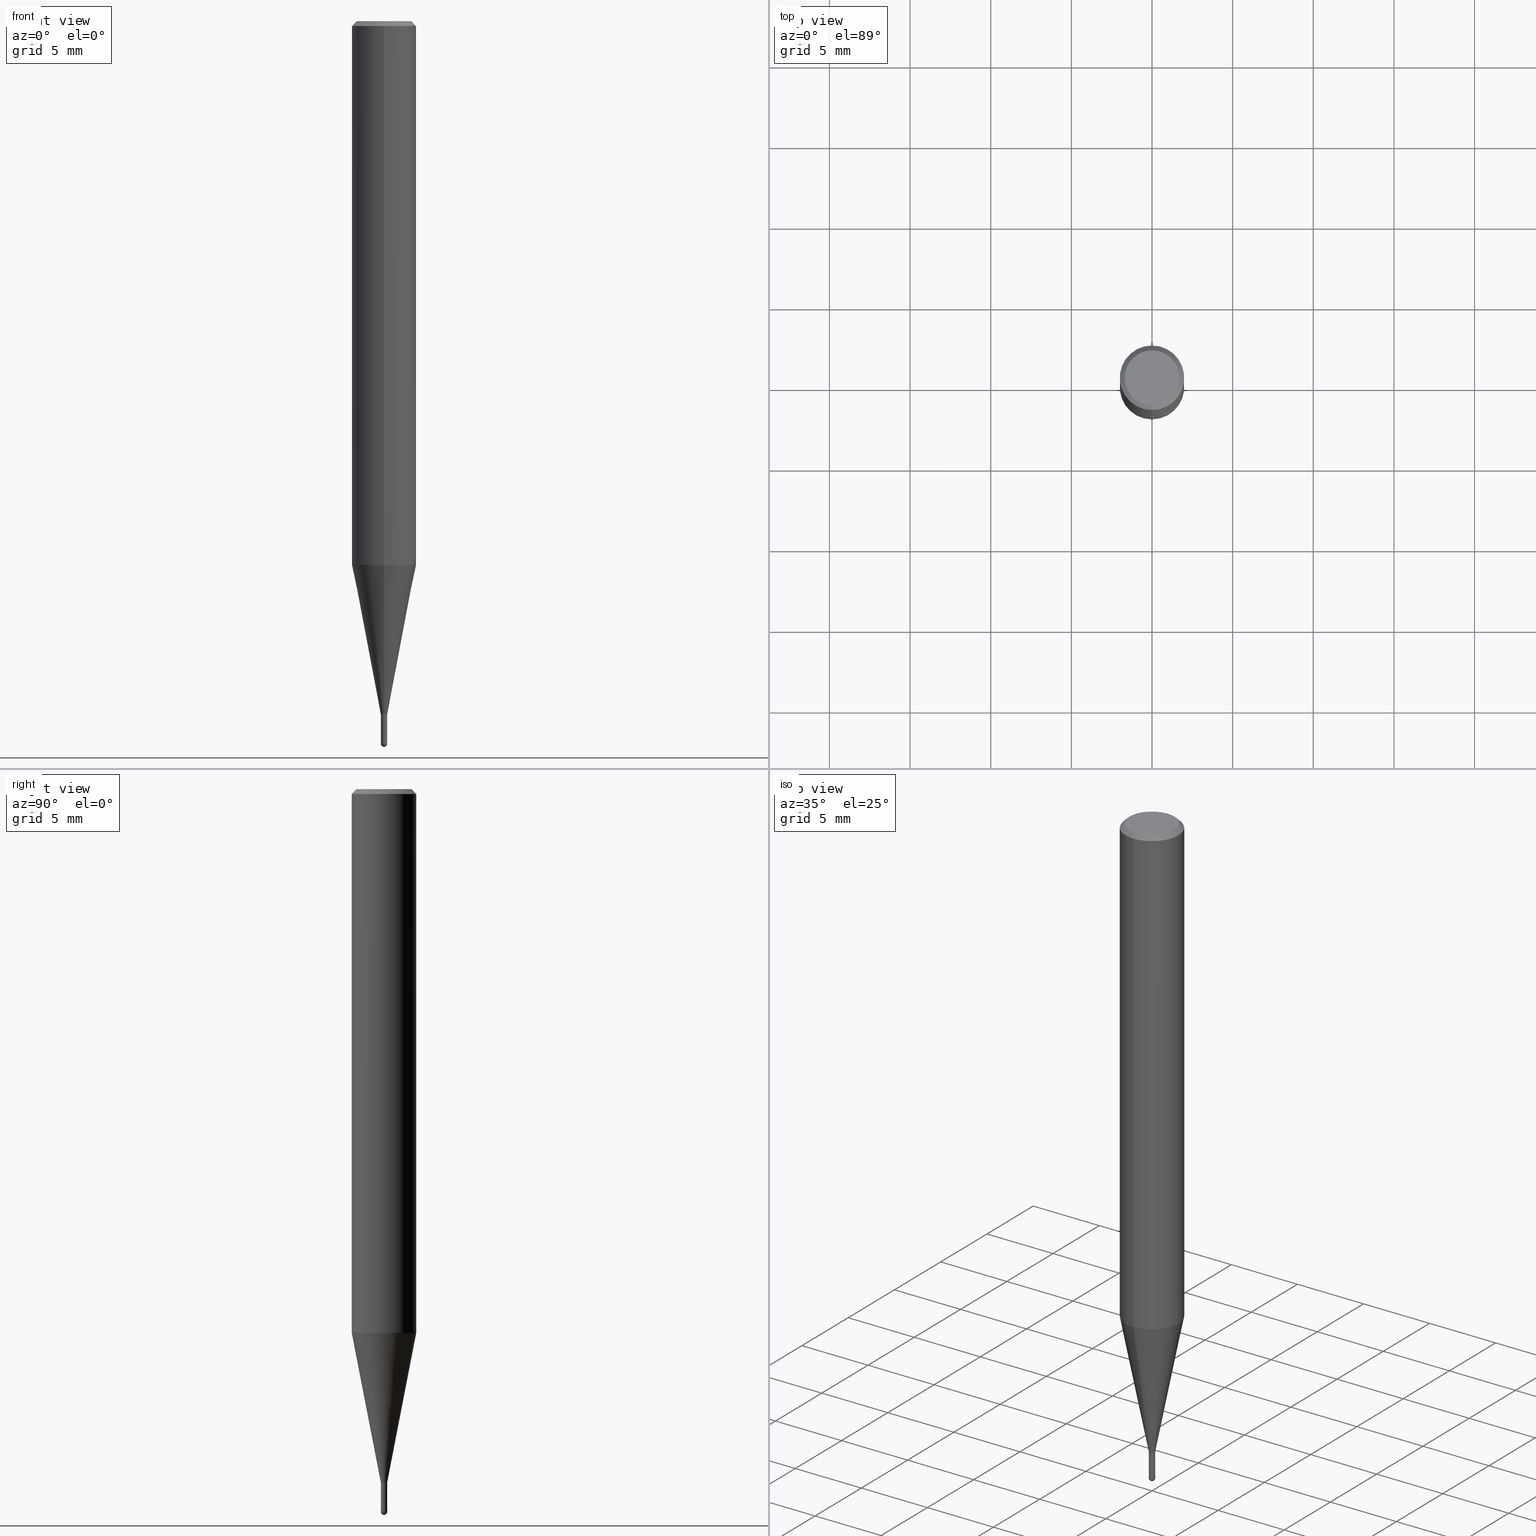
[diagram: canonical four-view strip — front | top / right | iso, engineering-drawing reading convention]
A machine part, canonical four-view strip (front | top / right | iso — engineering-drawing reading convention). The complete STEP part file that produces these views, byte-faithful:
ISO-10303-21;
HEADER;
FILE_DESCRIPTION(('no description'),'unknown implementation level');
FILE_NAME('CSELB2004-020-Huellk.stp','  ',('CIMSOURCE GmbH'),('CADClick - KiM GmbH - www.kimweb.de'),'unknown preprocess','ACIS','unknown authorization');
FILE_SCHEMA(('automotive_design'));
ENDSEC;
DATA;
#1=MECHANICAL_DESIGN_GEOMETRIC_PRESENTATION_REPRESENTATION(' ',(#14,#15,#16,#17,#18,#19,#20,#21,#22,#23,#24,#25,#26,#27,#28,#29,#30,#31,#32,#33,#34,#35,#36,#37,#38,#39,#40,#41,#42,#43,#44,#45,#46,#47,#48,#49,#50,#51,#52,#53,#54,#55,#56,#57,#58,#59,#60,#61,#62,#63,#64,#65,#66,#67,#68,#69,#70,#71,#72,#73,#74),#10);
#2=PRODUCT_DEFINITION_CONTEXT('',#75,'design');
#3=APPLICATION_PROTOCOL_DEFINITION('INTERNATIONAL STANDARD','automotive_design',1994,#75);
#4=PRODUCT_CATEGORY_RELATIONSHIP('NONE','NONE',#76,#77);
#5=SHAPE_DEFINITION_REPRESENTATION(#78,#79);
#6=PRODUCT_DEFINITION_CONTEXT('',#80,'design');
#7=APPLICATION_PROTOCOL_DEFINITION('INTERNATIONAL STANDARD','automotive_design',1994,#80);
#8=PRODUCT_CATEGORY_RELATIONSHIP('NONE','NONE',#81,#82);
#9=SHAPE_DEFINITION_REPRESENTATION(#83,#84);
#10= (GEOMETRIC_REPRESENTATION_CONTEXT(3)GLOBAL_UNCERTAINTY_ASSIGNED_CONTEXT((#87))GLOBAL_UNIT_ASSIGNED_CONTEXT((#89,#90,#91))REPRESENTATION_CONTEXT('NONE','WORKSPACE'));
#14=STYLED_ITEM('',(#93),#94);
#15=STYLED_ITEM('',(#95),#96);
#16=STYLED_ITEM('',(#97),#98);
#17=STYLED_ITEM('',(#99),#100);
#18=STYLED_ITEM('',(#101),#102);
#19=STYLED_ITEM('',(#103),#104);
#20=STYLED_ITEM('',(#105),#106);
#21=STYLED_ITEM('',(#107),#108);
#22=STYLED_ITEM('',(#109),#110);
#23=STYLED_ITEM('',(#111),#112);
#24=STYLED_ITEM('',(#113),#114);
#25=STYLED_ITEM('',(#115),#116);
#26=STYLED_ITEM('',(#117),#118);
#27=STYLED_ITEM('',(#119),#120);
#28=STYLED_ITEM('',(#121),#122);
#29=STYLED_ITEM('',(#123),#124);
#30=STYLED_ITEM('',(#125),#126);
#31=STYLED_ITEM('',(#127),#128);
#32=STYLED_ITEM('',(#129),#130);
#33=STYLED_ITEM('',(#131),#132);
#34=STYLED_ITEM('',(#133),#134);
#35=STYLED_ITEM('',(#135),#136);
#36=STYLED_ITEM('',(#137),#138);
#37=STYLED_ITEM('',(#139),#140);
#38=STYLED_ITEM('',(#141),#142);
#39=STYLED_ITEM('',(#143),#144);
#40=STYLED_ITEM('',(#145),#146);
#41=STYLED_ITEM('',(#147),#148);
#42=STYLED_ITEM('',(#149),#150);
#43=STYLED_ITEM('',(#151),#152);
#44=STYLED_ITEM('',(#153),#154);
#45=STYLED_ITEM('',(#155),#156);
#46=STYLED_ITEM('',(#157),#158);
#47=STYLED_ITEM('',(#159),#160);
#48=STYLED_ITEM('',(#161),#162);
#49=STYLED_ITEM('',(#163),#164);
#50=STYLED_ITEM('',(#165),#166);
#51=STYLED_ITEM('',(#167),#168);
#52=STYLED_ITEM('',(#169),#170);
#53=STYLED_ITEM('',(#171),#172);
#54=STYLED_ITEM('',(#173),#174);
#55=STYLED_ITEM('',(#175),#176);
#56=STYLED_ITEM('',(#177),#178);
#57=STYLED_ITEM('',(#179),#180);
#58=STYLED_ITEM('',(#181),#182);
#59=STYLED_ITEM('',(#183),#184);
#60=STYLED_ITEM('',(#185),#186);
#61=STYLED_ITEM('',(#187),#188);
#62=STYLED_ITEM('',(#189),#190);
#63=STYLED_ITEM('',(#191),#192);
#64=STYLED_ITEM('',(#193),#194);
#65=STYLED_ITEM('',(#195),#196);
#66=STYLED_ITEM('',(#197),#198);
#67=STYLED_ITEM('',(#199),#200);
#68=STYLED_ITEM('',(#201),#202);
#69=STYLED_ITEM('',(#203),#204);
#70=STYLED_ITEM('',(#205),#206);
#71=STYLED_ITEM('',(#207),#208);
#72=STYLED_ITEM('',(#209),#210);
#73=STYLED_ITEM('',(#211),#212);
#74=STYLED_ITEM('',(#213),#214);
#75=APPLICATION_CONTEXT(' ');
#76=PRODUCT_CATEGORY('part','NONE');
#77=PRODUCT_RELATED_PRODUCT_CATEGORY('detail',' ',(#215));
#78=PRODUCT_DEFINITION_SHAPE('NONE','NONE',#216);
#79=ADVANCED_BREP_SHAPE_REPRESENTATION('1',(#136,#217),#10);
#80=APPLICATION_CONTEXT(' ');
#81=PRODUCT_CATEGORY('part','NONE');
#82=PRODUCT_RELATED_PRODUCT_CATEGORY('detail',' ',(#218));
#83=PRODUCT_DEFINITION_SHAPE('NONE','NONE',#219);
#84=ADVANCED_BREP_SHAPE_REPRESENTATION('2',(#164,#220),#10);
#87=UNCERTAINTY_MEASURE_WITH_UNIT(LENGTH_MEASURE(1.0E-006),#89,'','');
#89= (CONVERSION_BASED_UNIT('MILLIMETRE',#223)LENGTH_UNIT()NAMED_UNIT(#226));
#90= (NAMED_UNIT(#228)PLANE_ANGLE_UNIT()SI_UNIT($,.RADIAN.));
#91= (NAMED_UNIT(#228)SOLID_ANGLE_UNIT()SI_UNIT($,.STERADIAN.));
#93=PRESENTATION_STYLE_ASSIGNMENT((#234));
#94=EDGE_CURVE('',#134,#176,#235,.T.);
#95=PRESENTATION_STYLE_ASSIGNMENT((#236));
#96=EDGE_CURVE('',#138,#102,#237,.T.);
#97=PRESENTATION_STYLE_ASSIGNMENT((#238));
#98=VERTEX_POINT('',#239);
#99=PRESENTATION_STYLE_ASSIGNMENT((#240));
#100=ADVANCED_FACE('',(#241),#242,.T.);
#101=PRESENTATION_STYLE_ASSIGNMENT((#243));
#102=VERTEX_POINT('',#244);
#103=PRESENTATION_STYLE_ASSIGNMENT((#245));
#104=EDGE_CURVE('',#118,#160,#246,.T.);
#105=PRESENTATION_STYLE_ASSIGNMENT((#247));
#106=ADVANCED_FACE('',(#248),#249,.T.);
#107=PRESENTATION_STYLE_ASSIGNMENT((#250));
#108=VERTEX_POINT('',#251);
#109=PRESENTATION_STYLE_ASSIGNMENT((#252));
#110=VERTEX_POINT('',#253);
#111=PRESENTATION_STYLE_ASSIGNMENT((#254));
#112=VERTEX_POINT('',#255);
#113=PRESENTATION_STYLE_ASSIGNMENT((#256));
#114=EDGE_CURVE('',#194,#108,#257,.T.);
#115=PRESENTATION_STYLE_ASSIGNMENT((#258));
#116=EDGE_CURVE('',#176,#146,#259,.T.);
#117=PRESENTATION_STYLE_ASSIGNMENT((#260));
#118=VERTEX_POINT('',#261);
#119=PRESENTATION_STYLE_ASSIGNMENT((#262));
#120=EDGE_CURVE('',#196,#194,#263,.T.);
#121=PRESENTATION_STYLE_ASSIGNMENT((#264));
#122=EDGE_CURVE('',#108,#194,#265,.T.);
#123=PRESENTATION_STYLE_ASSIGNMENT((#266));
#124=ADVANCED_FACE('',(#267),#268,.T.);
#125=PRESENTATION_STYLE_ASSIGNMENT((#269));
#126=ADVANCED_FACE('',(#270),#271,.T.);
#127=PRESENTATION_STYLE_ASSIGNMENT((#272));
#128=EDGE_CURVE('',#190,#110,#273,.T.);
#129=PRESENTATION_STYLE_ASSIGNMENT((#274));
#130=EDGE_CURVE('',#112,#196,#275,.T.);
#131=PRESENTATION_STYLE_ASSIGNMENT((#276));
#132=EDGE_CURVE('',#204,#202,#277,.T.);
#133=PRESENTATION_STYLE_ASSIGNMENT((#278));
#134=VERTEX_POINT('',#279);
#135=PRESENTATION_STYLE_ASSIGNMENT((#280));
#136=MANIFOLD_SOLID_BREP('1',#281);
#137=PRESENTATION_STYLE_ASSIGNMENT((#282));
#138=VERTEX_POINT('',#283);
#139=PRESENTATION_STYLE_ASSIGNMENT((#284));
#140=EDGE_CURVE('',#118,#160,#285,.T.);
#141=PRESENTATION_STYLE_ASSIGNMENT((#286));
#142=EDGE_CURVE('',#196,#112,#287,.T.);
#143=PRESENTATION_STYLE_ASSIGNMENT((#288));
#144=ADVANCED_FACE('',(#289),#290,.T.);
#145=PRESENTATION_STYLE_ASSIGNMENT((#291));
#146=VERTEX_POINT('',#292);
#147=PRESENTATION_STYLE_ASSIGNMENT((#293));
#148=ADVANCED_FACE('',(#294),#295,.T.);
#149=PRESENTATION_STYLE_ASSIGNMENT((#296));
#150=EDGE_CURVE('',#108,#112,#297,.T.);
#151=PRESENTATION_STYLE_ASSIGNMENT((#298));
#152=EDGE_CURVE('',#102,#138,#299,.T.);
#153=PRESENTATION_STYLE_ASSIGNMENT((#300));
#154=EDGE_CURVE('',#134,#98,#301,.T.);
#155=PRESENTATION_STYLE_ASSIGNMENT((#302));
#156=ADVANCED_FACE('',(#303),#304,.T.);
#157=PRESENTATION_STYLE_ASSIGNMENT((#305));
#158=EDGE_CURVE('',#98,#134,#306,.T.);
#159=PRESENTATION_STYLE_ASSIGNMENT((#307));
#160=VERTEX_POINT('',#308);
#161=PRESENTATION_STYLE_ASSIGNMENT((#309));
#162=ADVANCED_FACE('',(#310),#311,.T.);
#163=PRESENTATION_STYLE_ASSIGNMENT((#312));
#164=MANIFOLD_SOLID_BREP('2',#313);
#165=PRESENTATION_STYLE_ASSIGNMENT((#314));
#166=EDGE_CURVE('',#194,#110,#315,.T.);
#167=PRESENTATION_STYLE_ASSIGNMENT((#316));
#168=EDGE_CURVE('',#98,#202,#317,.T.);
#169=PRESENTATION_STYLE_ASSIGNMENT((#318));
#170=EDGE_CURVE('',#190,#108,#319,.T.);
#171=PRESENTATION_STYLE_ASSIGNMENT((#320));
#172=ADVANCED_FACE('',(#321),#322,.T.);
#173=PRESENTATION_STYLE_ASSIGNMENT((#323));
#174=ADVANCED_FACE('',(#324),#325,.T.);
#175=PRESENTATION_STYLE_ASSIGNMENT((#326));
#176=VERTEX_POINT('',#327);
#177=PRESENTATION_STYLE_ASSIGNMENT((#328));
#178=EDGE_CURVE('',#118,#138,#329,.T.);
#179=PRESENTATION_STYLE_ASSIGNMENT((#330));
#180=ADVANCED_FACE('',(#331),#332,.T.);
#181=PRESENTATION_STYLE_ASSIGNMENT((#333));
#182=EDGE_CURVE('',#160,#118,#334,.T.);
#183=PRESENTATION_STYLE_ASSIGNMENT((#335));
#184=EDGE_CURVE('',#146,#98,#336,.T.);
#185=PRESENTATION_STYLE_ASSIGNMENT((#337));
#186=EDGE_CURVE('',#110,#190,#338,.T.);
#187=PRESENTATION_STYLE_ASSIGNMENT((#339));
#188=ADVANCED_FACE('',(#340),#341,.T.);
#189=PRESENTATION_STYLE_ASSIGNMENT((#342));
#190=VERTEX_POINT('',#343);
#191=PRESENTATION_STYLE_ASSIGNMENT((#344));
#192=ADVANCED_FACE('',(#345),#346,.T.);
#193=PRESENTATION_STYLE_ASSIGNMENT((#347));
#194=VERTEX_POINT('',#348);
#195=PRESENTATION_STYLE_ASSIGNMENT((#349));
#196=VERTEX_POINT('',#350);
#197=PRESENTATION_STYLE_ASSIGNMENT((#351));
#198=ADVANCED_FACE('',(#352),#353,.T.);
#199=PRESENTATION_STYLE_ASSIGNMENT((#354));
#200=EDGE_CURVE('',#102,#160,#355,.T.);
#201=PRESENTATION_STYLE_ASSIGNMENT((#356));
#202=VERTEX_POINT('',#357);
#203=PRESENTATION_STYLE_ASSIGNMENT((#358));
#204=VERTEX_POINT('',#359);
#205=PRESENTATION_STYLE_ASSIGNMENT((#360));
#206=EDGE_CURVE('',#202,#204,#361,.T.);
#207=PRESENTATION_STYLE_ASSIGNMENT((#362));
#208=ADVANCED_FACE('',(#363),#364,.T.);
#209=PRESENTATION_STYLE_ASSIGNMENT((#365));
#210=EDGE_CURVE('',#204,#134,#366,.T.);
#211=PRESENTATION_STYLE_ASSIGNMENT((#367));
#212=ADVANCED_FACE('',(#368,#369),#370,.T.);
#213=PRESENTATION_STYLE_ASSIGNMENT((#371));
#214=EDGE_CURVE('',#146,#176,#372,.T.);
#215=PRODUCT('1','1','PART-1-DESC',(#373));
#216=PRODUCT_DEFINITION('NONE','NONE',#374,#2);
#217=AXIS2_PLACEMENT_3D('',#375,#376,#377);
#218=PRODUCT('2','2','PART-2-DESC',(#378));
#219=PRODUCT_DEFINITION('NONE','NONE',#379,#6);
#220=AXIS2_PLACEMENT_3D('',#380,#381,#382);
#223=LENGTH_MEASURE_WITH_UNIT(LENGTH_MEASURE(1.0),#383);
#226=DIMENSIONAL_EXPONENTS(1.0,0.0,0.0,0.0,0.0,0.0,0.0);
#228=DIMENSIONAL_EXPONENTS(0.0,0.0,0.0,0.0,0.0,0.0,0.0);
#234=CURVE_STYLE('',#384,POSITIVE_LENGTH_MEASURE(1.0E-006),#385);
#235=LINE('',#386,#387);
#236=CURVE_STYLE('',#388,POSITIVE_LENGTH_MEASURE(1.0E-006),#389);
#237=CIRCLE('',#390,0.1999);
#238=POINT_STYLE(' ',#391,POSITIVE_LENGTH_MEASURE(1.0E-006),#392);
#239=CARTESIAN_POINT('',(0.0,2.0,-0.299999999999997));
#240=SURFACE_STYLE_USAGE(.BOTH.,#393);
#241=FACE_OUTER_BOUND('',#394,.T.);
#242=CYLINDRICAL_SURFACE('',#395,2.0);
#243=POINT_STYLE(' ',#396,POSITIVE_LENGTH_MEASURE(1.0E-006),#397);
#244=CARTESIAN_POINT('',(0.0,0.1999,-44.68));
#245=CURVE_STYLE('',#398,POSITIVE_LENGTH_MEASURE(1.0E-006),#399);
#246=CIRCLE('',#400,0.2);
#247=SURFACE_STYLE_USAGE(.BOTH.,#401);
#248=FACE_OUTER_BOUND('',#402,.T.);
#249=CONICAL_SURFACE('',#403,0.19995,0.000833333140432319);
#250=POINT_STYLE(' ',#404,POSITIVE_LENGTH_MEASURE(1.0E-006),#405);
#251=CARTESIAN_POINT('',(0.0,0.19495,-43.0));
#252=POINT_STYLE(' ',#406,POSITIVE_LENGTH_MEASURE(1.0E-006),#407);
#253=CARTESIAN_POINT('',(2.44915147732706E-016,-1.99995,-33.714));
#254=POINT_STYLE(' ',#408,POSITIVE_LENGTH_MEASURE(1.0E-006),#409);
#255=CARTESIAN_POINT('',(0.0,0.19495,-44.68));
#256=CURVE_STYLE('',#410,POSITIVE_LENGTH_MEASURE(1.0E-006),#411);
#257=CIRCLE('',#412,0.19495);
#258=CURVE_STYLE('',#413,POSITIVE_LENGTH_MEASURE(1.0E-006),#414);
#259=CIRCLE('',#415,1.7);
#260=POINT_STYLE(' ',#416,POSITIVE_LENGTH_MEASURE(1.0E-006),#417);
#261=CARTESIAN_POINT('',(2.44921270764475E-017,-0.2,-44.8));
#262=CURVE_STYLE('',#418,POSITIVE_LENGTH_MEASURE(1.0E-006),#419);
#263=LINE('',#420,#421);
#264=CURVE_STYLE('',#422,POSITIVE_LENGTH_MEASURE(1.0E-006),#423);
#265=CIRCLE('',#424,0.19495);
#266=SURFACE_STYLE_USAGE(.BOTH.,#425);
#267=FACE_OUTER_BOUND('',#426,.T.);
#268=CONICAL_SURFACE('',#427,0.19995,0.000833333140432319);
#269=SURFACE_STYLE_USAGE(.BOTH.,#428);
#270=FACE_OUTER_BOUND('',#429,.T.);
#271=CYLINDRICAL_SURFACE('',#430,0.19495);
#272=CURVE_STYLE('',#431,POSITIVE_LENGTH_MEASURE(1.0E-006),#432);
#273=CIRCLE('',#433,1.99995);
#274=CURVE_STYLE('',#434,POSITIVE_LENGTH_MEASURE(1.0E-006),#435);
#275=CIRCLE('',#436,0.19495);
#276=CURVE_STYLE('',#437,POSITIVE_LENGTH_MEASURE(1.0E-006),#438);
#277=CIRCLE('',#439,2.0);
#278=POINT_STYLE(' ',#440,POSITIVE_LENGTH_MEASURE(1.0E-006),#441);
#279=CARTESIAN_POINT('',(2.44921270764475E-016,-2.0,-0.299999999999997));
#280=SURFACE_STYLE_USAGE(.BOTH.,#442);
#281=CLOSED_SHELL('',(#162,#174,#180,#192,#212,#172,#188,#100,#156,#126,#144));
#282=POINT_STYLE(' ',#443,POSITIVE_LENGTH_MEASURE(1.0E-006),#444);
#283=CARTESIAN_POINT('',(2.44798810129093E-017,-0.1999,-44.68));
#284=CURVE_STYLE('',#445,POSITIVE_LENGTH_MEASURE(1.0E-006),#446);
#285=CIRCLE('',#447,0.2);
#286=CURVE_STYLE('',#448,POSITIVE_LENGTH_MEASURE(1.0E-006),#449);
#287=CIRCLE('',#450,0.19495);
#288=SURFACE_STYLE_USAGE(.BOTH.,#451);
#289=FACE_OUTER_BOUND('',#452,.T.);
#290=PLANE('',#453);
#291=POINT_STYLE(' ',#454,POSITIVE_LENGTH_MEASURE(1.0E-006),#455);
#292=CARTESIAN_POINT('',(0.0,1.7,0.0));
#293=SURFACE_STYLE_USAGE(.BOTH.,#456);
#294=FACE_OUTER_BOUND('',#457,.T.);
#295=SPHERICAL_SURFACE('',#458,0.2);
#296=CURVE_STYLE('',#459,POSITIVE_LENGTH_MEASURE(1.0E-006),#460);
#297=LINE('',#461,#462);
#298=CURVE_STYLE('',#463,POSITIVE_LENGTH_MEASURE(1.0E-006),#464);
#299=CIRCLE('',#465,0.1999);
#300=CURVE_STYLE('',#466,POSITIVE_LENGTH_MEASURE(1.0E-006),#467);
#301=CIRCLE('',#468,2.0);
#302=SURFACE_STYLE_USAGE(.BOTH.,#469);
#303=FACE_OUTER_BOUND('',#470,.T.);
#304=CONICAL_SURFACE('',#471,1.09745,0.191984604054908);
#305=CURVE_STYLE('',#472,POSITIVE_LENGTH_MEASURE(1.0E-006),#473);
#306=CIRCLE('',#474,2.0);
#307=POINT_STYLE(' ',#475,POSITIVE_LENGTH_MEASURE(1.0E-006),#476);
#308=CARTESIAN_POINT('',(0.0,0.2,-44.8));
#309=SURFACE_STYLE_USAGE(.BOTH.,#477);
#310=FACE_OUTER_BOUND('',#478,.T.);
#311=CYLINDRICAL_SURFACE('',#479,0.19495);
#312=SURFACE_STYLE_USAGE(.BOTH.,#480);
#313=CLOSED_SHELL('',(#198,#124,#208,#106,#148));
#314=CURVE_STYLE('',#481,POSITIVE_LENGTH_MEASURE(1.0E-006),#482);
#315=LINE('',#483,#484);
#316=CURVE_STYLE('',#485,POSITIVE_LENGTH_MEASURE(1.0E-006),#486);
#317=LINE('',#487,#488);
#318=CURVE_STYLE('',#489,POSITIVE_LENGTH_MEASURE(1.0E-006),#490);
#319=LINE('',#491,#492);
#320=SURFACE_STYLE_USAGE(.BOTH.,#493);
#321=FACE_OUTER_BOUND('',#494,.T.);
#322=PLANE('',#495);
#323=SURFACE_STYLE_USAGE(.BOTH.,#496);
#324=FACE_OUTER_BOUND('',#497,.T.);
#325=CONICAL_SURFACE('',#498,1.09745,0.191984604054908);
#326=POINT_STYLE(' ',#499,POSITIVE_LENGTH_MEASURE(1.0E-006),#500);
#327=CARTESIAN_POINT('',(2.08183080149804E-016,-1.7,0.0));
#328=CURVE_STYLE('',#501,POSITIVE_LENGTH_MEASURE(1.0E-006),#502);
#329=LINE('',#503,#504);
#330=SURFACE_STYLE_USAGE(.BOTH.,#505);
#331=FACE_OUTER_BOUND('',#506,.T.);
#332=CYLINDRICAL_SURFACE('',#507,2.0);
#333=CURVE_STYLE('',#508,POSITIVE_LENGTH_MEASURE(1.0E-006),#509);
#334=CIRCLE('',#510,0.2);
#335=CURVE_STYLE('',#511,POSITIVE_LENGTH_MEASURE(1.0E-006),#512);
#336=LINE('',#513,#514);
#337=CURVE_STYLE('',#515,POSITIVE_LENGTH_MEASURE(1.0E-006),#516);
#338=CIRCLE('',#517,1.99995);
#339=SURFACE_STYLE_USAGE(.BOTH.,#518);
#340=FACE_OUTER_BOUND('',#519,.T.);
#341=CONICAL_SURFACE('',#520,1.85,0.785398163397453);
#342=POINT_STYLE(' ',#521,POSITIVE_LENGTH_MEASURE(1.0E-006),#522);
#343=CARTESIAN_POINT('',(0.0,1.99995,-33.714));
#344=SURFACE_STYLE_USAGE(.BOTH.,#523);
#345=FACE_OUTER_BOUND('',#524,.T.);
#346=CONICAL_SURFACE('',#525,1.85,0.785398163397453);
#347=POINT_STYLE(' ',#526,POSITIVE_LENGTH_MEASURE(1.0E-006),#527);
#348=CARTESIAN_POINT('',(2.38737008677672E-017,-0.19495,-43.0));
#349=POINT_STYLE(' ',#528,POSITIVE_LENGTH_MEASURE(1.0E-006),#529);
#350=CARTESIAN_POINT('',(2.38737008677672E-017,-0.19495,-44.68));
#351=SURFACE_STYLE_USAGE(.BOTH.,#530);
#352=FACE_OUTER_BOUND('',#531,.T.);
#353=SPHERICAL_SURFACE('',#532,0.2);
#354=CURVE_STYLE('',#533,POSITIVE_LENGTH_MEASURE(1.0E-006),#534);
#355=LINE('',#535,#536);
#356=POINT_STYLE(' ',#537,POSITIVE_LENGTH_MEASURE(1.0E-006),#538);
#357=CARTESIAN_POINT('',(0.0,2.0,-33.714));
#358=POINT_STYLE(' ',#539,POSITIVE_LENGTH_MEASURE(1.0E-006),#540);
#359=CARTESIAN_POINT('',(2.44921270764475E-016,-2.0,-33.714));
#360=CURVE_STYLE('',#541,POSITIVE_LENGTH_MEASURE(1.0E-006),#542);
#361=CIRCLE('',#543,2.0);
#362=SURFACE_STYLE_USAGE(.BOTH.,#544);
#363=FACE_OUTER_BOUND('',#545,.T.);
#364=PLANE('',#546);
#365=CURVE_STYLE('',#547,POSITIVE_LENGTH_MEASURE(1.0E-006),#548);
#366=LINE('',#549,#550);
#367=SURFACE_STYLE_USAGE(.BOTH.,#551);
#368=FACE_OUTER_BOUND('',#552,.T.);
#369=FACE_BOUND('',#553,.T.);
#370=PLANE('',#554);
#371=CURVE_STYLE('',#555,POSITIVE_LENGTH_MEASURE(1.0E-006),#556);
#372=CIRCLE('',#557,1.7);
#373=PRODUCT_CONTEXT('',#75,'mechanical');
#374=PRODUCT_DEFINITION_FORMATION_WITH_SPECIFIED_SOURCE(' ','NONE',#215,.NOT_KNOWN.);
#375=CARTESIAN_POINT('',(0.0,0.0,0.0));
#376=DIRECTION('',(0.0,0.0,1.0));
#377=DIRECTION('',(1.0,0.0,0.0));
#378=PRODUCT_CONTEXT('',#80,'mechanical');
#379=PRODUCT_DEFINITION_FORMATION_WITH_SPECIFIED_SOURCE(' ','NONE',#218,.NOT_KNOWN.);
#380=CARTESIAN_POINT('',(0.0,0.0,0.0));
#381=DIRECTION('',(0.0,0.0,1.0));
#382=DIRECTION('',(1.0,0.0,0.0));
#383= (NAMED_UNIT(#226)LENGTH_UNIT()SI_UNIT(.MILLI.,.METRE.));
#384=DRAUGHTING_PRE_DEFINED_CURVE_FONT('continuous');
#385=COLOUR_RGB('',0.498039215803146,0.498039215803146,0.498039215803146);
#386=CARTESIAN_POINT('',(2.2655217545714E-016,-1.85,-0.149999999999999));
#387=VECTOR('',#559,1.0);
#388=DRAUGHTING_PRE_DEFINED_CURVE_FONT('continuous');
#389=COLOUR_RGB('',0.800000011920929,0.800000011920929,0.800000011920929);
#390=AXIS2_PLACEMENT_3D('',#560,#561,#562);
#391=PRE_DEFINED_MARKER('');
#392=COLOUR_RGB('',0.498039215803146,0.498039215803146,0.498039215803146);
#393=SURFACE_SIDE_STYLE('',(#563));
#394=EDGE_LOOP('',(#564,#565,#566,#567));
#395=AXIS2_PLACEMENT_3D('',#568,#569,#570);
#396=PRE_DEFINED_MARKER('');
#397=COLOUR_RGB('',0.800000011920929,0.800000011920929,0.800000011920929);
#398=DRAUGHTING_PRE_DEFINED_CURVE_FONT('continuous');
#399=COLOUR_RGB('',0.800000011920929,0.800000011920929,0.800000011920929);
#400=AXIS2_PLACEMENT_3D('',#571,#572,#573);
#401=SURFACE_SIDE_STYLE('',(#574));
#402=EDGE_LOOP('',(#575,#576,#577,#578));
#403=AXIS2_PLACEMENT_3D('',#579,#580,#581);
#404=PRE_DEFINED_MARKER('');
#405=COLOUR_RGB('',0.498039215803146,0.498039215803146,0.498039215803146);
#406=PRE_DEFINED_MARKER('');
#407=COLOUR_RGB('',0.498039215803146,0.498039215803146,0.498039215803146);
#408=PRE_DEFINED_MARKER('');
#409=COLOUR_RGB('',0.498039215803146,0.498039215803146,0.498039215803146);
#410=DRAUGHTING_PRE_DEFINED_CURVE_FONT('continuous');
#411=COLOUR_RGB('',0.498039215803146,0.498039215803146,0.498039215803146);
#412=AXIS2_PLACEMENT_3D('',#582,#583,#584);
#413=DRAUGHTING_PRE_DEFINED_CURVE_FONT('continuous');
#414=COLOUR_RGB('',0.498039215803146,0.498039215803146,0.498039215803146);
#415=AXIS2_PLACEMENT_3D('',#585,#586,#587);
#416=PRE_DEFINED_MARKER('');
#417=COLOUR_RGB('',0.800000011920929,0.800000011920929,0.800000011920929);
#418=DRAUGHTING_PRE_DEFINED_CURVE_FONT('continuous');
#419=COLOUR_RGB('',0.498039215803146,0.498039215803146,0.498039215803146);
#420=CARTESIAN_POINT('',(2.38737008677672E-017,-0.19495,-43.84));
#421=VECTOR('',#588,1.0);
#422=DRAUGHTING_PRE_DEFINED_CURVE_FONT('continuous');
#423=COLOUR_RGB('',0.498039215803146,0.498039215803146,0.498039215803146);
#424=AXIS2_PLACEMENT_3D('',#589,#590,#591);
#425=SURFACE_SIDE_STYLE('',(#592));
#426=EDGE_LOOP('',(#593,#594,#595,#596));
#427=AXIS2_PLACEMENT_3D('',#597,#598,#599);
#428=SURFACE_SIDE_STYLE('',(#600));
#429=EDGE_LOOP('',(#601,#602,#603,#604));
#430=AXIS2_PLACEMENT_3D('',#605,#606,#607);
#431=DRAUGHTING_PRE_DEFINED_CURVE_FONT('continuous');
#432=COLOUR_RGB('',0.498039215803146,0.498039215803146,0.498039215803146);
#433=AXIS2_PLACEMENT_3D('',#608,#609,#610);
#434=DRAUGHTING_PRE_DEFINED_CURVE_FONT('continuous');
#435=COLOUR_RGB('',0.498039215803146,0.498039215803146,0.498039215803146);
#436=AXIS2_PLACEMENT_3D('',#611,#612,#613);
#437=DRAUGHTING_PRE_DEFINED_CURVE_FONT('continuous');
#438=COLOUR_RGB('',0.498039215803146,0.498039215803146,0.498039215803146);
#439=AXIS2_PLACEMENT_3D('',#614,#615,#616);
#440=PRE_DEFINED_MARKER('');
#441=COLOUR_RGB('',0.498039215803146,0.498039215803146,0.498039215803146);
#442=SURFACE_SIDE_STYLE('',(#617));
#443=PRE_DEFINED_MARKER('');
#444=COLOUR_RGB('',0.800000011920929,0.800000011920929,0.800000011920929);
#445=DRAUGHTING_PRE_DEFINED_CURVE_FONT('continuous');
#446=COLOUR_RGB('',0.800000011920929,0.800000011920929,0.800000011920929);
#447=AXIS2_PLACEMENT_3D('',#618,#619,#620);
#448=DRAUGHTING_PRE_DEFINED_CURVE_FONT('continuous');
#449=COLOUR_RGB('',0.498039215803146,0.498039215803146,0.498039215803146);
#450=AXIS2_PLACEMENT_3D('',#621,#622,#623);
#451=SURFACE_SIDE_STYLE('',(#624));
#452=EDGE_LOOP('',(#625,#626));
#453=AXIS2_PLACEMENT_3D('',#627,#628,#629);
#454=PRE_DEFINED_MARKER('');
#455=COLOUR_RGB('',0.498039215803146,0.498039215803146,0.498039215803146);
#456=SURFACE_SIDE_STYLE('',(#630));
#457=EDGE_LOOP('',(#631,#632));
#458=AXIS2_PLACEMENT_3D('',#633,#634,#635);
#459=DRAUGHTING_PRE_DEFINED_CURVE_FONT('continuous');
#460=COLOUR_RGB('',0.498039215803146,0.498039215803146,0.498039215803146);
#461=CARTESIAN_POINT('',(-2.38737008677672E-017,0.19495,-43.84));
#462=VECTOR('',#636,1.0);
#463=DRAUGHTING_PRE_DEFINED_CURVE_FONT('continuous');
#464=COLOUR_RGB('',0.800000011920929,0.800000011920929,0.800000011920929);
#465=AXIS2_PLACEMENT_3D('',#637,#638,#639);
#466=DRAUGHTING_PRE_DEFINED_CURVE_FONT('continuous');
#467=COLOUR_RGB('',0.498039215803146,0.498039215803146,0.498039215803146);
#468=AXIS2_PLACEMENT_3D('',#640,#641,#642);
#469=SURFACE_SIDE_STYLE('',(#643));
#470=EDGE_LOOP('',(#644,#645,#646,#647));
#471=AXIS2_PLACEMENT_3D('',#648,#649,#650);
#472=DRAUGHTING_PRE_DEFINED_CURVE_FONT('continuous');
#473=COLOUR_RGB('',0.498039215803146,0.498039215803146,0.498039215803146);
#474=AXIS2_PLACEMENT_3D('',#651,#652,#653);
#475=PRE_DEFINED_MARKER('');
#476=COLOUR_RGB('',0.800000011920929,0.800000011920929,0.800000011920929);
#477=SURFACE_SIDE_STYLE('',(#654));
#478=EDGE_LOOP('',(#655,#656,#657,#658));
#479=AXIS2_PLACEMENT_3D('',#659,#660,#661);
#480=SURFACE_SIDE_STYLE('',(#662));
#481=DRAUGHTING_PRE_DEFINED_CURVE_FONT('continuous');
#482=COLOUR_RGB('',0.498039215803146,0.498039215803146,0.498039215803146);
#483=CARTESIAN_POINT('',(1.34394424300237E-016,-1.09745,-38.357));
#484=VECTOR('',#663,1.0);
#485=DRAUGHTING_PRE_DEFINED_CURVE_FONT('continuous');
#486=COLOUR_RGB('',0.498039215803146,0.498039215803146,0.498039215803146);
#487=CARTESIAN_POINT('',(-2.44921270764475E-016,2.0,-17.007));
#488=VECTOR('',#664,1.0);
#489=DRAUGHTING_PRE_DEFINED_CURVE_FONT('continuous');
#490=COLOUR_RGB('',0.498039215803146,0.498039215803146,0.498039215803146);
#491=CARTESIAN_POINT('',(-1.34394424300237E-016,1.09745,-38.357));
#492=VECTOR('',#665,1.0);
#493=SURFACE_SIDE_STYLE('',(#666));
#494=EDGE_LOOP('',(#667,#668));
#495=AXIS2_PLACEMENT_3D('',#669,#670,#671);
#496=SURFACE_SIDE_STYLE('',(#672));
#497=EDGE_LOOP('',(#673,#674,#675,#676));
#498=AXIS2_PLACEMENT_3D('',#677,#678,#679);
#499=PRE_DEFINED_MARKER('');
#500=COLOUR_RGB('',0.498039215803146,0.498039215803146,0.498039215803146);
#501=DRAUGHTING_PRE_DEFINED_CURVE_FONT('continuous');
#502=COLOUR_RGB('',0.800000011920929,0.800000011920929,0.800000011920929);
#503=CARTESIAN_POINT('',(2.44860040446784E-017,-0.19995,-44.74));
#504=VECTOR('',#680,1.0);
#505=SURFACE_SIDE_STYLE('',(#681));
#506=EDGE_LOOP('',(#682,#683,#684,#685));
#507=AXIS2_PLACEMENT_3D('',#686,#687,#688);
#508=DRAUGHTING_PRE_DEFINED_CURVE_FONT('continuous');
#509=COLOUR_RGB('',0.800000011920929,0.800000011920929,0.800000011920929);
#510=AXIS2_PLACEMENT_3D('',#689,#690,#691);
#511=DRAUGHTING_PRE_DEFINED_CURVE_FONT('continuous');
#512=COLOUR_RGB('',0.498039215803146,0.498039215803146,0.498039215803146);
#513=CARTESIAN_POINT('',(-2.2655217545714E-016,1.85,-0.149999999999999));
#514=VECTOR('',#692,1.0);
#515=DRAUGHTING_PRE_DEFINED_CURVE_FONT('continuous');
#516=COLOUR_RGB('',0.498039215803146,0.498039215803146,0.498039215803146);
#517=AXIS2_PLACEMENT_3D('',#693,#694,#695);
#518=SURFACE_SIDE_STYLE('',(#696));
#519=EDGE_LOOP('',(#697,#698,#699,#700));
#520=AXIS2_PLACEMENT_3D('',#701,#702,#703);
#521=PRE_DEFINED_MARKER('');
#522=COLOUR_RGB('',0.498039215803146,0.498039215803146,0.498039215803146);
#523=SURFACE_SIDE_STYLE('',(#704));
#524=EDGE_LOOP('',(#705,#706,#707,#708));
#525=AXIS2_PLACEMENT_3D('',#709,#710,#711);
#526=PRE_DEFINED_MARKER('');
#527=COLOUR_RGB('',0.498039215803146,0.498039215803146,0.498039215803146);
#528=PRE_DEFINED_MARKER('');
#529=COLOUR_RGB('',0.498039215803146,0.498039215803146,0.498039215803146);
#530=SURFACE_SIDE_STYLE('',(#712));
#531=EDGE_LOOP('',(#713,#714));
#532=AXIS2_PLACEMENT_3D('',#715,#716,#717);
#533=DRAUGHTING_PRE_DEFINED_CURVE_FONT('continuous');
#534=COLOUR_RGB('',0.800000011920929,0.800000011920929,0.800000011920929);
#535=CARTESIAN_POINT('',(-2.44860040446784E-017,0.19995,-44.74));
#536=VECTOR('',#718,1.0);
#537=PRE_DEFINED_MARKER('');
#538=COLOUR_RGB('',0.498039215803146,0.498039215803146,0.498039215803146);
#539=PRE_DEFINED_MARKER('');
#540=COLOUR_RGB('',0.498039215803146,0.498039215803146,0.498039215803146);
#541=DRAUGHTING_PRE_DEFINED_CURVE_FONT('continuous');
#542=COLOUR_RGB('',0.498039215803146,0.498039215803146,0.498039215803146);
#543=AXIS2_PLACEMENT_3D('',#719,#720,#721);
#544=SURFACE_SIDE_STYLE('',(#722));
#545=EDGE_LOOP('',(#723,#724));
#546=AXIS2_PLACEMENT_3D('',#725,#726,#727);
#547=DRAUGHTING_PRE_DEFINED_CURVE_FONT('continuous');
#548=COLOUR_RGB('',0.498039215803146,0.498039215803146,0.498039215803146);
#549=CARTESIAN_POINT('',(2.44921270764475E-016,-2.0,-17.007));
#550=VECTOR('',#728,1.0);
#551=SURFACE_SIDE_STYLE('',(#729));
#552=EDGE_LOOP('',(#730,#731));
#553=EDGE_LOOP('',(#732,#733));
#554=AXIS2_PLACEMENT_3D('',#734,#735,#736);
#555=DRAUGHTING_PRE_DEFINED_CURVE_FONT('continuous');
#556=COLOUR_RGB('',0.498039215803146,0.498039215803146,0.498039215803146);
#557=AXIS2_PLACEMENT_3D('',#737,#738,#739);
#559=DIRECTION('',(-8.6592745707194E-017,0.707106781186551,0.707106781186544));
#560=CARTESIAN_POINT('',(0.0,0.0,-44.68));
#561=DIRECTION('',(0.0,0.0,-1.0));
#562=DIRECTION('',(0.0,1.0,0.0));
#563=SURFACE_STYLE_FILL_AREA(#740);
#564=ORIENTED_EDGE('',*,*,#168,.T.);
#565=ORIENTED_EDGE('',*,*,#132,.F.);
#566=ORIENTED_EDGE('',*,*,#210,.T.);
#567=ORIENTED_EDGE('',*,*,#154,.T.);
#568=CARTESIAN_POINT('',(0.0,0.0,-17.007));
#569=DIRECTION('',(-0.0,-0.0,1.0));
#570=DIRECTION('',(0.0,1.0,0.0));
#571=CARTESIAN_POINT('',(0.0,0.0,-44.8));
#572=DIRECTION('',(1.0,0.0,1.22460635382236E-016));
#573=DIRECTION('',(-1.22460635382236E-016,0.0,1.0));
#574=SURFACE_STYLE_FILL_AREA(#741);
#575=ORIENTED_EDGE('',*,*,#200,.T.);
#576=ORIENTED_EDGE('',*,*,#140,.F.);
#577=ORIENTED_EDGE('',*,*,#178,.T.);
#578=ORIENTED_EDGE('',*,*,#96,.T.);
#579=CARTESIAN_POINT('',(0.0,0.0,-44.74));
#580=DIRECTION('',(0.0,-0.0,-1.0));
#581=DIRECTION('',(0.0,1.0,0.0));
#582=CARTESIAN_POINT('',(0.0,0.0,-43.0));
#583=DIRECTION('',(0.0,0.0,-1.0));
#584=DIRECTION('',(0.0,1.0,0.0));
#585=CARTESIAN_POINT('',(0.0,0.0,0.0));
#586=DIRECTION('',(0.0,0.0,-1.0));
#587=DIRECTION('',(0.0,1.0,0.0));
#588=DIRECTION('',(-0.0,-0.0,1.0));
#589=CARTESIAN_POINT('',(0.0,0.0,-43.0));
#590=DIRECTION('',(0.0,0.0,-1.0));
#591=DIRECTION('',(0.0,1.0,0.0));
#592=SURFACE_STYLE_FILL_AREA(#742);
#593=ORIENTED_EDGE('',*,*,#200,.F.);
#594=ORIENTED_EDGE('',*,*,#152,.T.);
#595=ORIENTED_EDGE('',*,*,#178,.F.);
#596=ORIENTED_EDGE('',*,*,#182,.F.);
#597=CARTESIAN_POINT('',(0.0,0.0,-44.74));
#598=DIRECTION('',(0.0,-0.0,-1.0));
#599=DIRECTION('',(0.0,1.0,0.0));
#600=SURFACE_STYLE_FILL_AREA(#743);
#601=ORIENTED_EDGE('',*,*,#150,.T.);
#602=ORIENTED_EDGE('',*,*,#142,.F.);
#603=ORIENTED_EDGE('',*,*,#120,.T.);
#604=ORIENTED_EDGE('',*,*,#114,.T.);
#605=CARTESIAN_POINT('',(0.0,0.0,-43.84));
#606=DIRECTION('',(-0.0,-0.0,1.0));
#607=DIRECTION('',(0.0,1.0,0.0));
#608=CARTESIAN_POINT('',(0.0,0.0,-33.714));
#609=DIRECTION('',(0.0,0.0,-1.0));
#610=DIRECTION('',(0.0,1.0,0.0));
#611=CARTESIAN_POINT('',(0.0,0.0,-44.68));
#612=DIRECTION('',(0.0,0.0,-1.0));
#613=DIRECTION('',(0.0,1.0,0.0));
#614=CARTESIAN_POINT('',(0.0,0.0,-33.714));
#615=DIRECTION('',(0.0,0.0,-1.0));
#616=DIRECTION('',(0.0,1.0,0.0));
#617=SURFACE_STYLE_FILL_AREA(#744);
#618=CARTESIAN_POINT('',(0.0,0.0,-44.8));
#619=DIRECTION('',(0.0,0.0,-1.0));
#620=DIRECTION('',(0.0,1.0,0.0));
#621=CARTESIAN_POINT('',(0.0,0.0,-44.68));
#622=DIRECTION('',(0.0,0.0,-1.0));
#623=DIRECTION('',(0.0,1.0,0.0));
#624=SURFACE_STYLE_FILL_AREA(#745);
#625=ORIENTED_EDGE('',*,*,#130,.T.);
#626=ORIENTED_EDGE('',*,*,#142,.T.);
#627=CARTESIAN_POINT('',(0.0,0.097475,-44.68));
#628=DIRECTION('',(0.0,0.0,-1.0));
#629=DIRECTION('',(0.0,1.0,0.0));
#630=SURFACE_STYLE_FILL_AREA(#746);
#631=ORIENTED_EDGE('',*,*,#104,.T.);
#632=ORIENTED_EDGE('',*,*,#182,.T.);
#633=CARTESIAN_POINT('',(0.0,0.0,-44.8));
#634=DIRECTION('',(0.0,1.0,0.0));
#635=DIRECTION('',(0.0,0.0,-1.0));
#636=DIRECTION('',(0.0,0.0,-1.0));
#637=CARTESIAN_POINT('',(0.0,0.0,-44.68));
#638=DIRECTION('',(0.0,0.0,-1.0));
#639=DIRECTION('',(0.0,1.0,0.0));
#640=CARTESIAN_POINT('',(0.0,0.0,-0.299999999999997));
#641=DIRECTION('',(0.0,0.0,-1.0));
#642=DIRECTION('',(0.0,1.0,0.0));
#643=SURFACE_STYLE_FILL_AREA(#747);
#644=ORIENTED_EDGE('',*,*,#170,.T.);
#645=ORIENTED_EDGE('',*,*,#114,.F.);
#646=ORIENTED_EDGE('',*,*,#166,.T.);
#647=ORIENTED_EDGE('',*,*,#186,.T.);
#648=CARTESIAN_POINT('',(0.0,0.0,-38.357));
#649=DIRECTION('',(-0.0,-0.0,1.0));
#650=DIRECTION('',(0.0,1.0,0.0));
#651=CARTESIAN_POINT('',(0.0,0.0,-0.299999999999997));
#652=DIRECTION('',(0.0,0.0,-1.0));
#653=DIRECTION('',(0.0,1.0,0.0));
#654=SURFACE_STYLE_FILL_AREA(#748);
#655=ORIENTED_EDGE('',*,*,#150,.F.);
#656=ORIENTED_EDGE('',*,*,#122,.T.);
#657=ORIENTED_EDGE('',*,*,#120,.F.);
#658=ORIENTED_EDGE('',*,*,#130,.F.);
#659=CARTESIAN_POINT('',(0.0,0.0,-43.84));
#660=DIRECTION('',(-0.0,-0.0,1.0));
#661=DIRECTION('',(0.0,1.0,0.0));
#662=SURFACE_STYLE_FILL_AREA(#749);
#663=DIRECTION('',(2.33663968307108E-017,-0.190807411359389,0.981627491348082));
#664=DIRECTION('',(0.0,0.0,-1.0));
#665=DIRECTION('',(2.33663968307108E-017,-0.190807411359389,-0.981627491348082));
#666=SURFACE_STYLE_FILL_AREA(#750);
#667=ORIENTED_EDGE('',*,*,#214,.F.);
#668=ORIENTED_EDGE('',*,*,#116,.F.);
#669=CARTESIAN_POINT('',(0.0,0.85,0.0));
#670=DIRECTION('',(-0.0,0.0,1.0));
#671=DIRECTION('',(0.0,-1.0,0.0));
#672=SURFACE_STYLE_FILL_AREA(#751);
#673=ORIENTED_EDGE('',*,*,#170,.F.);
#674=ORIENTED_EDGE('',*,*,#128,.T.);
#675=ORIENTED_EDGE('',*,*,#166,.F.);
#676=ORIENTED_EDGE('',*,*,#122,.F.);
#677=CARTESIAN_POINT('',(0.0,0.0,-38.357));
#678=DIRECTION('',(-0.0,-0.0,1.0));
#679=DIRECTION('',(0.0,1.0,0.0));
#680=DIRECTION('',(-1.02050494051022E-019,0.000833333043981772,0.999999652777959));
#681=SURFACE_STYLE_FILL_AREA(#752);
#682=ORIENTED_EDGE('',*,*,#168,.F.);
#683=ORIENTED_EDGE('',*,*,#158,.T.);
#684=ORIENTED_EDGE('',*,*,#210,.F.);
#685=ORIENTED_EDGE('',*,*,#206,.F.);
#686=CARTESIAN_POINT('',(0.0,0.0,-17.007));
#687=DIRECTION('',(-0.0,-0.0,1.0));
#688=DIRECTION('',(0.0,1.0,0.0));
#689=CARTESIAN_POINT('',(0.0,0.0,-44.8));
#690=DIRECTION('',(0.0,0.0,-1.0));
#691=DIRECTION('',(0.0,1.0,0.0));
#692=DIRECTION('',(-8.6592745707194E-017,0.707106781186551,-0.707106781186544));
#693=CARTESIAN_POINT('',(0.0,0.0,-33.714));
#694=DIRECTION('',(0.0,0.0,-1.0));
#695=DIRECTION('',(0.0,1.0,0.0));
#696=SURFACE_STYLE_FILL_AREA(#753);
#697=ORIENTED_EDGE('',*,*,#184,.T.);
#698=ORIENTED_EDGE('',*,*,#154,.F.);
#699=ORIENTED_EDGE('',*,*,#94,.T.);
#700=ORIENTED_EDGE('',*,*,#116,.T.);
#701=CARTESIAN_POINT('',(0.0,0.0,-0.149999999999999));
#702=DIRECTION('',(0.0,-0.0,-1.0));
#703=DIRECTION('',(0.0,1.0,0.0));
#704=SURFACE_STYLE_FILL_AREA(#754);
#705=ORIENTED_EDGE('',*,*,#184,.F.);
#706=ORIENTED_EDGE('',*,*,#214,.T.);
#707=ORIENTED_EDGE('',*,*,#94,.F.);
#708=ORIENTED_EDGE('',*,*,#158,.F.);
#709=CARTESIAN_POINT('',(0.0,0.0,-0.149999999999999));
#710=DIRECTION('',(0.0,-0.0,-1.0));
#711=DIRECTION('',(0.0,1.0,0.0));
#712=SURFACE_STYLE_FILL_AREA(#755);
#713=ORIENTED_EDGE('',*,*,#104,.F.);
#714=ORIENTED_EDGE('',*,*,#140,.T.);
#715=CARTESIAN_POINT('',(0.0,0.0,-44.8));
#716=DIRECTION('',(0.0,1.0,0.0));
#717=DIRECTION('',(0.0,0.0,-1.0));
#718=DIRECTION('',(-1.02050494051022E-019,0.000833333043981772,-0.999999652777959));
#719=CARTESIAN_POINT('',(0.0,0.0,-33.714));
#720=DIRECTION('',(0.0,0.0,-1.0));
#721=DIRECTION('',(0.0,1.0,0.0));
#722=SURFACE_STYLE_FILL_AREA(#756);
#723=ORIENTED_EDGE('',*,*,#152,.F.);
#724=ORIENTED_EDGE('',*,*,#96,.F.);
#725=CARTESIAN_POINT('',(0.0,0.09995,-44.68));
#726=DIRECTION('',(-0.0,0.0,1.0));
#727=DIRECTION('',(0.0,-1.0,0.0));
#728=DIRECTION('',(-0.0,-0.0,1.0));
#729=SURFACE_STYLE_FILL_AREA(#757);
#730=ORIENTED_EDGE('',*,*,#206,.T.);
#731=ORIENTED_EDGE('',*,*,#132,.T.);
#732=ORIENTED_EDGE('',*,*,#128,.F.);
#733=ORIENTED_EDGE('',*,*,#186,.F.);
#734=CARTESIAN_POINT('',(0.0,1.0,-33.714));
#735=DIRECTION('',(0.0,0.0,-1.0));
#736=DIRECTION('',(0.0,1.0,0.0));
#737=CARTESIAN_POINT('',(0.0,0.0,0.0));
#738=DIRECTION('',(0.0,0.0,-1.0));
#739=DIRECTION('',(0.0,1.0,0.0));
#740=FILL_AREA_STYLE('',(#758));
#741=FILL_AREA_STYLE('',(#759));
#742=FILL_AREA_STYLE('',(#760));
#743=FILL_AREA_STYLE('',(#761));
#744=FILL_AREA_STYLE('',(#762));
#745=FILL_AREA_STYLE('',(#763));
#746=FILL_AREA_STYLE('',(#764));
#747=FILL_AREA_STYLE('',(#765));
#748=FILL_AREA_STYLE('',(#766));
#749=FILL_AREA_STYLE('',(#767));
#750=FILL_AREA_STYLE('',(#768));
#751=FILL_AREA_STYLE('',(#769));
#752=FILL_AREA_STYLE('',(#770));
#753=FILL_AREA_STYLE('',(#771));
#754=FILL_AREA_STYLE('',(#772));
#755=FILL_AREA_STYLE('',(#773));
#756=FILL_AREA_STYLE('',(#774));
#757=FILL_AREA_STYLE('',(#775));
#758=FILL_AREA_STYLE_COLOUR('',#776);
#759=FILL_AREA_STYLE_COLOUR('',#777);
#760=FILL_AREA_STYLE_COLOUR('',#778);
#761=FILL_AREA_STYLE_COLOUR('',#779);
#762=FILL_AREA_STYLE_COLOUR('',#780);
#763=FILL_AREA_STYLE_COLOUR('',#781);
#764=FILL_AREA_STYLE_COLOUR('',#782);
#765=FILL_AREA_STYLE_COLOUR('',#783);
#766=FILL_AREA_STYLE_COLOUR('',#784);
#767=FILL_AREA_STYLE_COLOUR('',#785);
#768=FILL_AREA_STYLE_COLOUR('',#786);
#769=FILL_AREA_STYLE_COLOUR('',#787);
#770=FILL_AREA_STYLE_COLOUR('',#788);
#771=FILL_AREA_STYLE_COLOUR('',#789);
#772=FILL_AREA_STYLE_COLOUR('',#790);
#773=FILL_AREA_STYLE_COLOUR('',#791);
#774=FILL_AREA_STYLE_COLOUR('',#792);
#775=FILL_AREA_STYLE_COLOUR('',#793);
#776=COLOUR_RGB('',0.498039215803146,0.498039215803146,0.498039215803146);
#777=COLOUR_RGB('',0.800000011920929,0.800000011920929,0.800000011920929);
#778=COLOUR_RGB('',0.800000011920929,0.800000011920929,0.800000011920929);
#779=COLOUR_RGB('',0.498039215803146,0.498039215803146,0.498039215803146);
#780=COLOUR_RGB('',0.498039215803146,0.498039215803146,0.498039215803146);
#781=COLOUR_RGB('',0.498039215803146,0.498039215803146,0.498039215803146);
#782=COLOUR_RGB('',0.800000011920929,0.800000011920929,0.800000011920929);
#783=COLOUR_RGB('',0.498039215803146,0.498039215803146,0.498039215803146);
#784=COLOUR_RGB('',0.498039215803146,0.498039215803146,0.498039215803146);
#785=COLOUR_RGB('',0.800000011920929,0.800000011920929,0.800000011920929);
#786=COLOUR_RGB('',0.498039215803146,0.498039215803146,0.498039215803146);
#787=COLOUR_RGB('',0.498039215803146,0.498039215803146,0.498039215803146);
#788=COLOUR_RGB('',0.498039215803146,0.498039215803146,0.498039215803146);
#789=COLOUR_RGB('',0.498039215803146,0.498039215803146,0.498039215803146);
#790=COLOUR_RGB('',0.498039215803146,0.498039215803146,0.498039215803146);
#791=COLOUR_RGB('',0.800000011920929,0.800000011920929,0.800000011920929);
#792=COLOUR_RGB('',0.800000011920929,0.800000011920929,0.800000011920929);
#793=COLOUR_RGB('',0.498039215803146,0.498039215803146,0.498039215803146);
#794=AXIS2_PLACEMENT_3D('PCS',#795,#796,#797);
#795=CARTESIAN_POINT('',(0.0,0.0,0.0));
#796=DIRECTION('',(0.0,0.0,1.0));
#797=DIRECTION('',(1.0,0.0,0.0));
#798=AXIS2_PLACEMENT_3D('CIP',#799,#800,#801);
#799=CARTESIAN_POINT('',(0.0,0.0,-45.0));
#800=DIRECTION('',(0.0,0.0,1.0));
#801=DIRECTION('',(1.0,0.0,0.0));
#802=AXIS2_PLACEMENT_3D('CRP',#803,#804,#805);
#803=CARTESIAN_POINT('',(-0.2,0.0,-45.0));
#804=DIRECTION('',(0.0,0.0,1.0));
#805=DIRECTION('',(1.0,0.0,0.0));
#806=AXIS2_PLACEMENT_3D('MCS',#807,#808,#809);
#807=CARTESIAN_POINT('',(0.0,0.0,-33.714));
#808=DIRECTION('',(0.0,0.0,1.0));
#809=DIRECTION('',(1.0,0.0,0.0));
#810=CONSTRUCTIVE_GEOMETRY_REPRESENTATION_RELATIONSHIP('coordinate systems',$,#79,#811);
#811=CONSTRUCTIVE_GEOMETRY_REPRESENTATION('coordinate systems',(#794,#798,#802,#806),#10);
ENDSEC;
END-ISO-10303-21;
